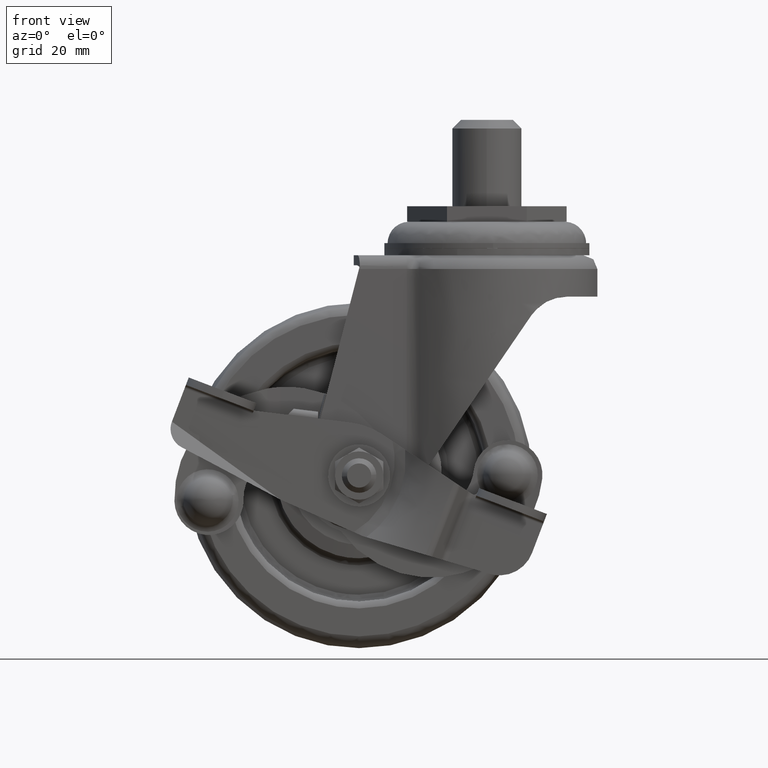
[diagram: clean part render]
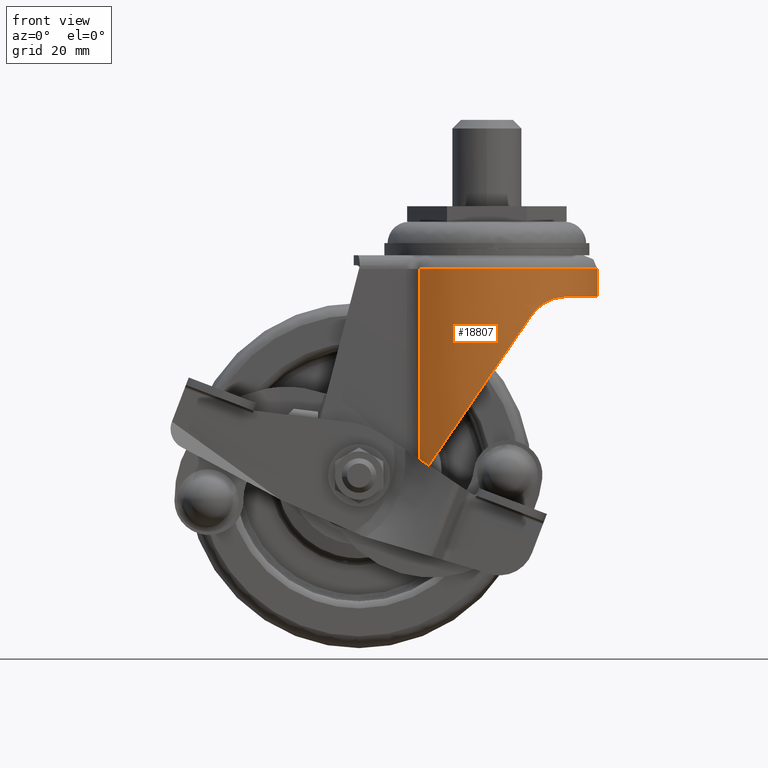
[diagram: same view with one face highlighted and labeled with its STEP entity id]
A machine part, front view. The second image highlights one B-rep face of the part: STEP entity #18807.
In plain terms, the highlighted face is a freeform B-spline surface patch.
Its self-contained STEP definition (entity closure, byte-faithful):
#18141=CARTESIAN_POINT('',(-19.567368212287249,-24.924680209679899,-13.699999999999999));
#18142=VERTEX_POINT('',#18141);
#18143=CARTESIAN_POINT('',(-19.567368212287249,-24.924680209679899,-74.579402681296301));
#18144=VERTEX_POINT('',#18143);
#18145=CARTESIAN_POINT('',(-19.567368212287249,-24.924680209679899,-13.699999999999999));
#18146=CARTESIAN_POINT('',(-19.567368212287249,-24.924680209679899,-74.579402681296301));
#18147=QUASI_UNIFORM_CURVE('',1,(#18145,#18146),.UNSPECIFIED.,.F.,.U.);
#18148=EDGE_CURVE('',#18142,#18144,#18147,.T.);
#18375=CARTESIAN_POINT('',(12.862751000000200,-28.843189272506951,-27.145142000000000));
#18376=VERTEX_POINT('',#18375);
#18382=CARTESIAN_POINT('',(12.862751000000200,-28.843189272506951,-27.145142000000000));
#18383=CARTESIAN_POINT('',(12.187302246050580,-29.135069138688589,-28.133094343374541));
#18384=CARTESIAN_POINT('',(11.510742639220140,-29.400059146911261,-29.122671487595468));
#18385=CARTESIAN_POINT('',(10.155556629302041,-29.880009264051129,-31.104848797685200));
#18386=CARTESIAN_POINT('',(9.476929852430313,-30.094960324963530,-32.097449510273513));
#18387=CARTESIAN_POINT('',(7.438116589809626,-30.668817495198510,-35.079541532401841));
#18388=CARTESIAN_POINT('',(6.075010308703574,-30.957045584271761,-37.073303511845992));
#18389=CARTESIAN_POINT('',(3.341518846687160,-31.357305089419810,-41.071474031375153));
#18390=CARTESIAN_POINT('',(1.971130955569510,-31.469270900867329,-43.075886535573822));
#18391=CARTESIAN_POINT('',(-0.776810011346236,-31.519758495671780,-47.095191777970477));
#18392=CARTESIAN_POINT('',(-2.154362564801965,-31.458292923108129,-49.110083752158701));
#18393=CARTESIAN_POINT('',(-3.880934651560928,-31.269351105422160,-51.635472879231173));
#18394=CARTESIAN_POINT('',(-4.226481575959329,-31.225934560544420,-52.140890783563862));
#18395=CARTESIAN_POINT('',(-4.745156556444899,-31.152226267014271,-52.899536290605234));
#18396=CARTESIAN_POINT('',(-4.918174788716215,-31.126214167775931,-53.152603258335162));
#18397=CARTESIAN_POINT('',(-5.263674956405059,-31.071408899353870,-53.657952773466619));
#18398=CARTESIAN_POINT('',(-5.436221052655800,-31.042607722630940,-53.910329166396927));
#18399=CARTESIAN_POINT('',(-6.297930321173968,-30.891600386630898,-55.170717443319830));
#18400=CARTESIAN_POINT('',(-6.984033245410868,-30.748413113304512,-56.174253222803657));
#18401=CARTESIAN_POINT('',(-9.032419054966793,-30.250819284291278,-59.170346633077948));
#18402=CARTESIAN_POINT('',(-10.384831320600689,-29.828739587314391,-61.148466896427173));
#18403=CARTESIAN_POINT('',(-12.392312395095081,-29.050702178916289,-64.084730558518714));
#18404=CARTESIAN_POINT('',(-13.057937682854140,-28.767119871554190,-65.058314504015513));
#18405=CARTESIAN_POINT('',(-14.381712827939150,-28.148703574965730,-66.994548376741832));
#18406=CARTESIAN_POINT('',(-15.039864080312240,-27.813879150207001,-67.957200344452062));
#18407=CARTESIAN_POINT('',(-16.348130530371680,-27.089134969132370,-69.870750258545527));
#18408=CARTESIAN_POINT('',(-16.998247961124651,-26.699230522760171,-70.821651471147547));
#18409=CARTESIAN_POINT('',(-18.289676106036850,-25.859042626937971,-72.710572658144514));
#18410=CARTESIAN_POINT('',(-18.930990512746739,-25.408784493679811,-73.648598033488142));
#18411=CARTESIAN_POINT('',(-19.567368212287271,-24.924680209679870,-74.579402681296258));
#18412=B_SPLINE_CURVE_WITH_KNOTS('',3,(#18382,#18383,#18384,#18385,#18386,#18387,#18388,#18389,#18390,#18391,#18392,#18393,#18394,#18395,#18396,#18397,#18398,#18399,#18400,#18401,#18402,#18403,#18404,#18405,#18406,#18407,#18408,#18409,#18410,#18411),.UNSPECIFIED.,.F.,.U.,(4,2,2,2,2,2,2,2,2,2,2,2,2,2,4),(0.0,0.062500000000000,0.125000000000001,0.250000000000001,0.375000000000001,0.500000000000002,0.531250000000002,0.546875000000002,0.562500000000002,0.625000000000002,0.750000000000001,0.812500000000001,0.875000000000000,0.937500000000000,1.0),.UNSPECIFIED.);
#18413=EDGE_CURVE('',#18376,#18144,#18412,.T.);
#18471=CARTESIAN_POINT('',(23.181616000000201,-21.714622615046299,-21.699999999999999));
#18472=VERTEX_POINT('',#18471);
#18478=CARTESIAN_POINT('',(12.862751000000200,-28.843189272506951,-27.145142000000000));
#18479=CARTESIAN_POINT('',(13.192631570928290,-28.700638862375229,-26.662638576563371));
#18480=CARTESIAN_POINT('',(13.549049918375790,-28.540101288619070,-26.213619089110111));
#18481=CARTESIAN_POINT('',(14.308062414866979,-28.178876305936200,-25.377944887076040));
#18482=CARTESIAN_POINT('',(14.710694381224689,-27.978188928725459,-24.991325993975629));
#18483=CARTESIAN_POINT('',(15.239966452026390,-27.698532873648009,-24.546019646418049));
#18484=CARTESIAN_POINT('',(15.347124001142390,-27.641157442179590,-24.458862587978938));
#18485=CARTESIAN_POINT('',(15.563986917786689,-27.523407456830640,-24.288352800676279));
#18486=CARTESIAN_POINT('',(15.673761716345060,-27.462990325994198,-24.204961695242371));
#18487=CARTESIAN_POINT('',(16.004176801160071,-27.278564914079649,-23.962371299953041));
#18488=CARTESIAN_POINT('',(16.226746853873589,-27.150932319855169,-23.810064665592758));
#18489=CARTESIAN_POINT('',(16.900182811788230,-26.753599291790881,-23.379766674386541));
#18490=CARTESIAN_POINT('',(17.356744351241201,-26.469480116415479,-23.128324272575860));
#18491=CARTESIAN_POINT('',(18.049123221392229,-26.012588574657229,-22.799438617346631));
#18492=CARTESIAN_POINT('',(18.281180929857602,-25.855168415214820,-22.697876703809438));
#18493=CARTESIAN_POINT('',(18.630740940848771,-25.611082391854868,-22.557177702588429));
#18494=CARTESIAN_POINT('',(18.747701606603862,-25.528253347473221,-22.512149354453520));
#18495=CARTESIAN_POINT('',(18.981008431065181,-25.360644281063809,-22.426285815585079));
#18496=CARTESIAN_POINT('',(19.097266980508198,-25.275932024347568,-22.385474342070239));
#18497=CARTESIAN_POINT('',(19.676502865395499,-24.847836377569958,-22.191545515052830));
#18498=CARTESIAN_POINT('',(20.133295581248209,-24.490860033477610,-22.068688940061850));
#18499=CARTESIAN_POINT('',(21.031840923885110,-23.747849401932299,-21.877685572358100));
#18500=CARTESIAN_POINT('',(21.473600504512788,-23.361814602404621,-21.809579345593050));
#18501=CARTESIAN_POINT('',(22.340474738656770,-22.560379678169639,-21.720724275173140));
#18502=CARTESIAN_POINT('',(22.765593959559538,-22.144979655445141,-21.700000005985590));
#18503=CARTESIAN_POINT('',(23.181616000000201,-21.714622615046299,-21.699999999999999));
#18504=B_SPLINE_CURVE_WITH_KNOTS('',3,(#18478,#18479,#18480,#18481,#18482,#18483,#18484,#18485,#18486,#18487,#18488,#18489,#18490,#18491,#18492,#18493,#18494,#18495,#18496,#18497,#18498,#18499,#18500,#18501,#18502,#18503),.UNSPECIFIED.,.F.,.U.,(4,2,2,2,2,2,2,2,2,2,2,2,4),(0.0,0.125000000000001,0.250000000000003,0.281250000000003,0.312500000000003,0.375000000000004,0.500000000000005,0.562500000000006,0.593750000000006,0.625000000000006,0.750000000000004,0.875000000000002,1.0),.UNSPECIFIED.);
#18505=EDGE_CURVE('',#18376,#18472,#18504,.T.);
#18686=CARTESIAN_POINT('',(32.0,0.0,-77.620328695602240));
#18687=CARTESIAN_POINT('',(32.0,-31.500000000000007,-77.620328695602254));
#18688=CARTESIAN_POINT('',(1.959370E-015,-31.500000000000000,-77.620328695602240));
#18689=CARTESIAN_POINT('',(-13.070068159996874,-31.499999999999996,-77.620328695602240));
#18690=CARTESIAN_POINT('',(-22.402830470301165,-22.492768145950912,-77.620328695602254));
#18691=CARTESIAN_POINT('',(32.0,0.0,-10.659074983585141));
#18692=CARTESIAN_POINT('',(32.0,-31.500000000000007,-10.659074983585143));
#18693=CARTESIAN_POINT('',(1.959370E-015,-31.500000000000000,-10.659074983585141));
#18694=CARTESIAN_POINT('',(-13.070068159996874,-31.499999999999996,-10.659074983585141));
#18695=CARTESIAN_POINT('',(-22.402830470301165,-22.492768145950912,-10.659074983585143));
#18703=(BOUNDED_SURFACE()B_SPLINE_SURFACE(2,1,((#18686,#18691),(#18687,#18692),(#18688,#18693),(#18689,#18694),(#18690,#18695)),.UNSPECIFIED.,.F.,.F.,.U.)B_SPLINE_SURFACE_WITH_KNOTS((3,2,3),(2,2),(0.0,52.613650794402673,78.606834357782546),(0.0,66.961253712017111),.UNSPECIFIED.)GEOMETRIC_REPRESENTATION_ITEM()RATIONAL_B_SPLINE_SURFACE(((1.0,1.0),(0.707106781186547,0.707106781186547),(1.0,1.0),(0.855299393101663,0.855299393101663),(0.853574207222431,0.853574207222431)))REPRESENTATION_ITEM('')SURFACE());
#18704=CARTESIAN_POINT('',(32.000000003778752,0.000000319582806,-13.700000000000070));
#18705=VERTEX_POINT('',#18704);
#18706=CARTESIAN_POINT('',(32.000000003778752,0.000000319582806,-13.700000000000070));
#18707=CARTESIAN_POINT('',(32.000000567796071,-0.728378609408467,-13.700000000000070));
#18708=CARTESIAN_POINT('',(31.974366681188940,-1.457083122264301,-13.700000000000070));
#18709=CARTESIAN_POINT('',(31.870859121119341,-2.921691476257609,-13.700000000000070));
#18710=CARTESIAN_POINT('',(31.792521076351701,-3.657601215387845,-13.700000000000070));
#18711=CARTESIAN_POINT('',(31.660823381846502,-4.577917368267066,-13.700000000000079));
#18712=CARTESIAN_POINT('',(31.632769811873711,-4.762143775440469,-13.700000000000070));
#18713=CARTESIAN_POINT('',(31.573359573406201,-5.129978043651241,-13.700000000000070));
#18714=CARTESIAN_POINT('',(31.479410768864700,-5.680100075871988,-13.700000000000070));
#18715=CARTESIAN_POINT('',(31.371093696086589,-6.225378519787960,-13.700000000000070));
#18716=CARTESIAN_POINT('',(31.135579752360449,-7.309570968418992,-13.700000000000070));
#18717=CARTESIAN_POINT('',(30.953420882219291,-8.023887933758511,-13.700000000000070));
#18718=CARTESIAN_POINT('',(30.332824521164099,-10.141852829279051,-13.700000000000070));
#18719=CARTESIAN_POINT('',(29.820625872461079,-11.520635641734440,-13.700000000000079));
#18720=CARTESIAN_POINT('',(29.056209178178040,-13.202256605664120,-13.700000000000079));
#18721=CARTESIAN_POINT('',(28.897088904557879,-13.536478308172100,-13.700000000000070));
#18722=CARTESIAN_POINT('',(28.648945098023152,-14.034620721414630,-13.700000000000070));
#18723=CARTESIAN_POINT('',(28.564652880912210,-14.200136373551700,-13.700000000000070));
#18724=CARTESIAN_POINT('',(28.392890500560458,-14.530096382214239,-13.700000000000079));
#18725=CARTESIAN_POINT('',(28.305331950248000,-14.694701644948760,-13.700000000000070));
#18726=CARTESIAN_POINT('',(27.860748142187020,-15.512802541992359,-13.700000000000060));
#18727=CARTESIAN_POINT('',(27.483841629107161,-16.150825085173469,-13.700000000000070));
#18728=CARTESIAN_POINT('',(26.291277543963790,-18.016970215381740,-13.700000000000070));
#18729=CARTESIAN_POINT('',(25.414066194425700,-19.197395615583801,-13.700000000000070));
#18730=CARTESIAN_POINT('',(23.976824354325601,-20.873943273972611,-13.700000000000070));
#18731=CARTESIAN_POINT('',(23.477432336253219,-21.417053461573062,-13.700000000000070));
#18732=CARTESIAN_POINT('',(22.697433438042459,-22.207766328444951,-13.700000000000070));
#18733=CARTESIAN_POINT('',(22.432277270783661,-22.467341555446719,-13.700000000000070));
#18734=CARTESIAN_POINT('',(22.026708349282821,-22.850633416015111,-13.700000000000070));
#18735=CARTESIAN_POINT('',(21.890077165954921,-22.977507246336330,-13.700000000000070));
#18736=CARTESIAN_POINT('',(21.615025564162419,-23.228451664752210,-13.700000000000070));
#18737=CARTESIAN_POINT('',(21.476593132685728,-23.352539171127280,-13.700000000000070));
#18738=CARTESIAN_POINT('',(20.222613317619501,-24.456973977244921,-13.700000000000070));
#18739=CARTESIAN_POINT('',(19.050733945312128,-25.351285061086219,-13.700000000000070));
#18740=CARTESIAN_POINT('',(16.596650840529769,-26.971408109767431,-13.700000000000070));
#18741=CARTESIAN_POINT('',(15.314438771411000,-27.697207341996581,-13.700000000000070));
#18742=CARTESIAN_POINT('',(13.808544205952380,-28.416891097302830,-13.700000000000070));
#18743=CARTESIAN_POINT('',(13.640337712416240,-28.495504483379410,-13.700000000000070));
#18744=CARTESIAN_POINT('',(13.302142886199180,-28.650009840918049,-13.700000000000070));
#18745=CARTESIAN_POINT('',(13.132022261642801,-28.725959160093950,-13.700000000000070));
#18746=CARTESIAN_POINT('',(12.619911933233890,-28.949283136676382,-13.700000000000070));
#18747=CARTESIAN_POINT('',(12.276902400428000,-29.091830167055239,-13.700000000000070));
#18748=CARTESIAN_POINT('',(11.243144171434480,-29.500773977051050,-13.700000000000070));
#18749=CARTESIAN_POINT('',(10.547671674336740,-29.748496521492040,-13.700000000000070));
#18750=CARTESIAN_POINT('',(8.442757020859638,-30.418540760479910,-13.700000000000070));
#18751=CARTESIAN_POINT('',(7.014903876963825,-30.768079728310070,-13.700000000000070));
#18752=CARTESIAN_POINT('',(4.836254451141855,-31.146634019770801,-13.700000000000070));
#18753=CARTESIAN_POINT('',(4.103871483620403,-31.248441268824681,-13.700000000000070));
#18754=CARTESIAN_POINT('',(3.180515336232759,-31.344559066500420,-13.700000000000070));
#18755=CARTESIAN_POINT('',(2.995449768351147,-31.362223718656320,-13.700000000000070));
#18756=CARTESIAN_POINT('',(2.624523807973642,-31.394410904565380,-13.700000000000070));
#18757=CARTESIAN_POINT('',(2.438709485253023,-31.408925578292880,-13.700000000000070));
#18758=CARTESIAN_POINT('',(1.882216113001751,-31.447593593253490,-13.700000000000070));
#18759=CARTESIAN_POINT('',(1.511779079293076,-31.466937095026079,-13.700000000000070));
#18760=CARTESIAN_POINT('',(-0.337653624260269,-31.531942736478829,-13.700000000000079));
#18761=CARTESIAN_POINT('',(-1.808431466833985,-31.482925143713231,-13.700000000000070));
#18762=CARTESIAN_POINT('',(-4.732824334696853,-31.187152661577620,-13.700000000000070));
#18763=CARTESIAN_POINT('',(-6.186440559817942,-30.940411595784472,-13.700000000000070));
#18764=CARTESIAN_POINT('',(-7.992342343782503,-30.503886153181309,-13.700000000000070));
#18765=CARTESIAN_POINT('',(-8.353514905783932,-30.409974423051430,-13.700000000000070));
#18766=CARTESIAN_POINT('',(-9.069510689327212,-30.210569737119890,-13.700000000000070));
#18767=CARTESIAN_POINT('',(-9.424843424061740,-30.104973997108068,-13.700000000000070));
#18768=CARTESIAN_POINT('',(-10.482950963299460,-29.770738341219658,-13.700000000000070));
#18769=CARTESIAN_POINT('',(-11.177844615549970,-29.524671024721560,-13.700000000000070));
#18770=CARTESIAN_POINT('',(-13.231471547406930,-28.717800063971481,-13.700000000000070));
#18771=CARTESIAN_POINT('',(-14.559298479504490,-28.088653963881399,-13.700000000000070));
#18772=CARTESIAN_POINT('',(-16.488374068601480,-27.006365643000869,-13.700000000000070));
#18773=CARTESIAN_POINT('',(-17.120918730030951,-26.622427516937680,-13.700000000000070));
#18774=CARTESIAN_POINT('',(-18.053565191636419,-26.010762826284111,-13.700000000000070));
#18775=CARTESIAN_POINT('',(-18.361910538093412,-25.800777028237629,-13.700000000000070));
#18776=CARTESIAN_POINT('',(-18.970336104364041,-25.370661515578419,-13.700000000000070));
#18777=CARTESIAN_POINT('',(-19.270754409449470,-25.150319814518880,-13.699999999999999));
#18778=CARTESIAN_POINT('',(-19.567368212287249,-24.924680209679899,-13.699999999999999));
#18779=B_SPLINE_CURVE_WITH_KNOTS('',3,(#18706,#18707,#18708,#18709,#18710,#18711,#18712,#18713,#18714,#18715,#18716,#18717,#18718,#18719,#18720,#18721,#18722,#18723,#18724,#18725,#18726,#18727,#18728,#18729,#18730,#18731,#18732,#18733,#18734,#18735,#18736,#18737,#18738,#18739,#18740,#18741,#18742,#18743,#18744,#18745,#18746,#18747,#18748,#18749,#18750,#18751,#18752,#18753,#18754,#18755,#18756,#18757,#18758,#18759,#18760,#18761,#18762,#18763,#18764,#18765,#18766,#18767,#18768,#18769,#18770,#18771,#18772,#18773,#18774,#18775,#18776,#18777,#18778),.UNSPECIFIED.,.F.,.U.,(4,2,2,2,1,2,2,2,2,2,2,2,2,2,2,2,2,2,2,2,2,2,2,2,2,2,2,2,2,2,2,2,2,2,2,2,4),(0.500138958063891,0.515625000000001,0.531250000000001,0.535156250000001,0.539062500000001,0.546875000000001,0.562500000000002,0.593750000000002,0.601562500000002,0.605468750000002,0.609375000000002,0.625000000000002,0.656250000000002,0.671875000000002,0.679687500000002,0.683593750000002,0.687500000000002,0.718750000000002,0.750000000000002,0.753906250000002,0.757812500000002,0.765625000000002,0.781250000000002,0.812500000000001,0.828125000000001,0.832031250000001,0.835937500000001,0.843750000000001,0.875000000000001,0.906250000000001,0.914062500000001,0.921875000000001,0.937500000000001,0.968750000000000,0.984375000000000,0.992187500000000,1.0),.UNSPECIFIED.);
#18780=EDGE_CURVE('',#18705,#18142,#18779,.T.);
#18781=ORIENTED_EDGE('',*,*,#18780,.T.);
#18782=ORIENTED_EDGE('',*,*,#18148,.T.);
#18783=ORIENTED_EDGE('',*,*,#18413,.F.);
#18784=ORIENTED_EDGE('',*,*,#18505,.T.);
#18785=CARTESIAN_POINT('',(32.0,0.000000011422180,-21.699999999999999));
#18786=VERTEX_POINT('',#18785);
#18787=CARTESIAN_POINT('',(31.999999999999989,0.000000011422177,-21.699999999999996));
#18788=CARTESIAN_POINT('',(32.000000004638594,-12.592380828729151,-21.699999999999996));
#18789=CARTESIAN_POINT('',(23.181616000000218,-21.714622615046292,-21.699999999999999));
#18797=(BOUNDED_CURVE()B_SPLINE_CURVE(2,(#18787,#18788,#18789),.UNSPECIFIED.,.F.,.U.)B_SPLINE_CURVE_WITH_KNOTS((3,3),(0.499999999773233,1.0),.UNSPECIFIED.)CURVE()GEOMETRIC_REPRESENTATION_ITEM()RATIONAL_B_SPLINE_CURVE((0.862212750000003,0.862212749937512,1.0))REPRESENTATION_ITEM(''));
#18798=EDGE_CURVE('',#18786,#18472,#18797,.T.);
#18799=ORIENTED_EDGE('',*,*,#18798,.F.);
#18800=CARTESIAN_POINT('',(32.0,0.000000011422180,-21.699999999999999));
#18801=CARTESIAN_POINT('',(32.000000003778752,0.000000319582806,-13.700000000000070));
#18802=QUASI_UNIFORM_CURVE('',1,(#18800,#18801),.UNSPECIFIED.,.F.,.U.);
#18803=EDGE_CURVE('',#18786,#18705,#18802,.T.);
#18804=ORIENTED_EDGE('',*,*,#18803,.T.);
#18805=EDGE_LOOP('',(#18781,#18782,#18783,#18784,#18799,#18804));
#18806=FACE_OUTER_BOUND('',#18805,.T.);
#18807=ADVANCED_FACE('',(#18806),#18703,.F.);